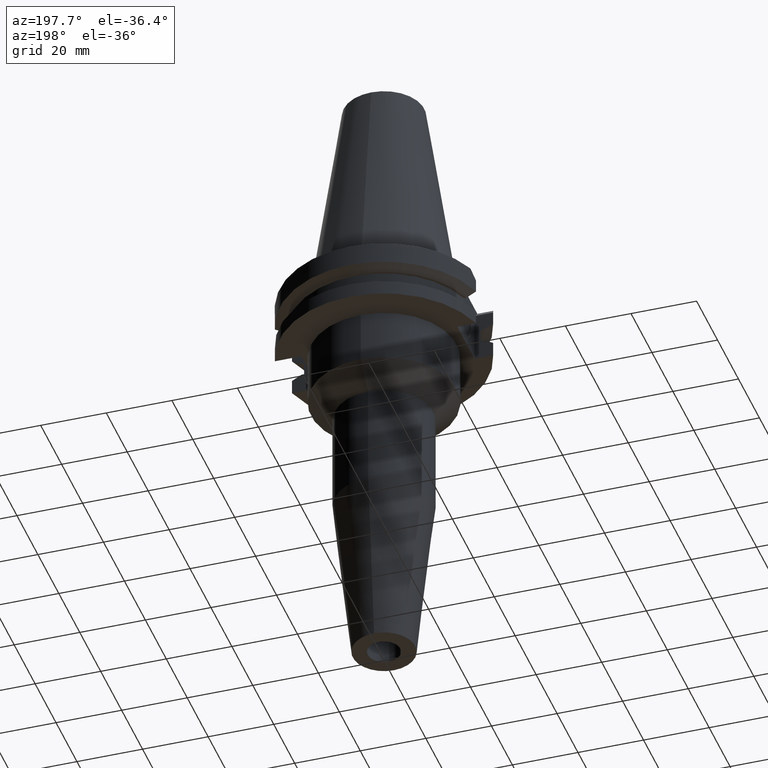
[diagram: clean part render]
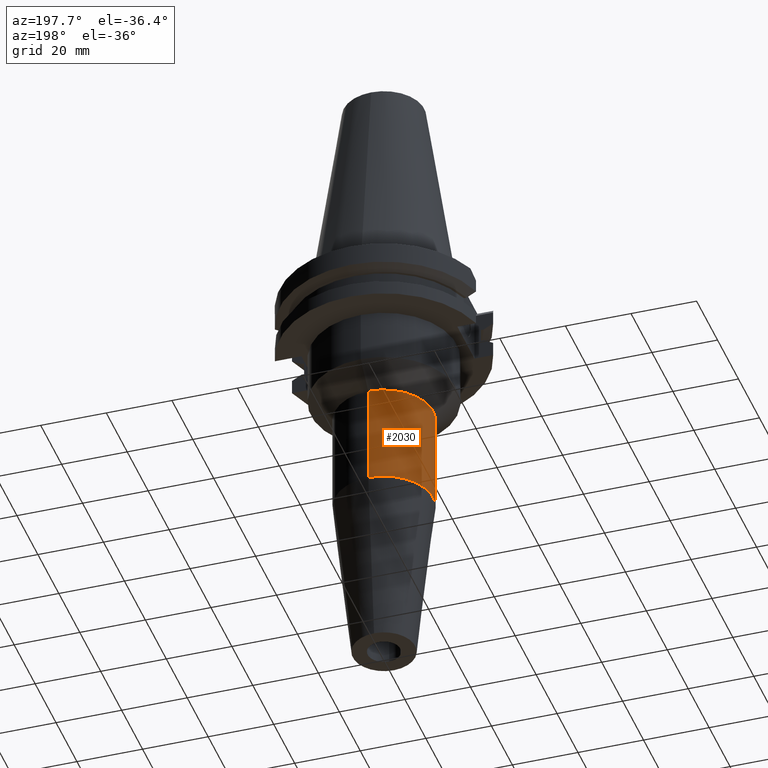
[diagram: same view with one face highlighted and labeled with its STEP entity id]
A machine part, auxiliary view. The second image highlights one B-rep face of the part: STEP entity #2030.
In plain terms, the highlighted cylindrical surface (partial cylindrical patch) has radius 15 mm, axis along (0, 0, -1).
Its self-contained STEP definition (entity closure, byte-faithful):
#900=CARTESIAN_POINT('',(0.E0,0.E0,-4.155444755020E1));
#901=DIRECTION('',(0.E0,0.E0,-1.E0));
#902=DIRECTION('',(0.E0,-1.E0,0.E0));
#903=AXIS2_PLACEMENT_3D('',#900,#901,#902);
#908=DIRECTION('',(0.E0,1.781120883831E-14,-1.E0));
#909=VECTOR('',#908,3.111654795158E1);
#910=CARTESIAN_POINT('',(0.E0,-1.5E1,-4.155444755020E1));
#911=LINE('',#910,#909);
#915=DIRECTION('',(0.E0,-1.781120883831E-14,-1.E0));
#916=VECTOR('',#915,3.111654795158E1);
#917=CARTESIAN_POINT('',(0.E0,1.5E1,-4.155444755020E1));
#918=LINE('',#917,#916);
#937=CARTESIAN_POINT('',(0.E0,0.E0,-7.267099550178E1));
#938=DIRECTION('',(0.E0,0.E0,1.E0));
#939=DIRECTION('',(0.E0,1.E0,0.E0));
#940=AXIS2_PLACEMENT_3D('',#937,#938,#939);
#1210=CARTESIAN_POINT('',(0.E0,1.5E1,-7.267099550178E1));
#1211=VERTEX_POINT('',#1210);
#1212=CARTESIAN_POINT('',(0.E0,-1.5E1,-7.267099550178E1));
#1213=VERTEX_POINT('',#1212);
#1214=CARTESIAN_POINT('',(0.E0,1.5E1,-4.155444755020E1));
#1215=VERTEX_POINT('',#1214);
#1216=CARTESIAN_POINT('',(0.E0,-1.5E1,-4.155444755020E1));
#1217=VERTEX_POINT('',#1216);
#2016=CARTESIAN_POINT('',(0.E0,2.178799736533E-14,7.79125E1));
#2017=DIRECTION('',(0.E0,0.E0,-1.E0));
#2018=DIRECTION('',(0.E0,-1.E0,0.E0));
#2019=AXIS2_PLACEMENT_3D('',#2016,#2017,#2018);
#2020=CYLINDRICAL_SURFACE('',#2019,1.5E1);
#2022=ORIENTED_EDGE('',*,*,#2021,.F.);
#2023=ORIENTED_EDGE('',*,*,#2011,.F.);
#2025=ORIENTED_EDGE('',*,*,#2024,.T.);
#2027=ORIENTED_EDGE('',*,*,#2026,.F.);
#2028=EDGE_LOOP('',(#2022,#2023,#2025,#2027));
#2029=FACE_OUTER_BOUND('',#2028,.F.);
#904=CIRCLE('',#903,1.5E1);
#941=CIRCLE('',#940,1.5E1);
#2011=EDGE_CURVE('',#1217,#1215,#904,.T.);
#2021=EDGE_CURVE('',#1215,#1211,#918,.T.);
#2024=EDGE_CURVE('',#1217,#1213,#911,.T.);
#2026=EDGE_CURVE('',#1211,#1213,#941,.T.);
#2030=ADVANCED_FACE('',(#2029),#2020,.T.);